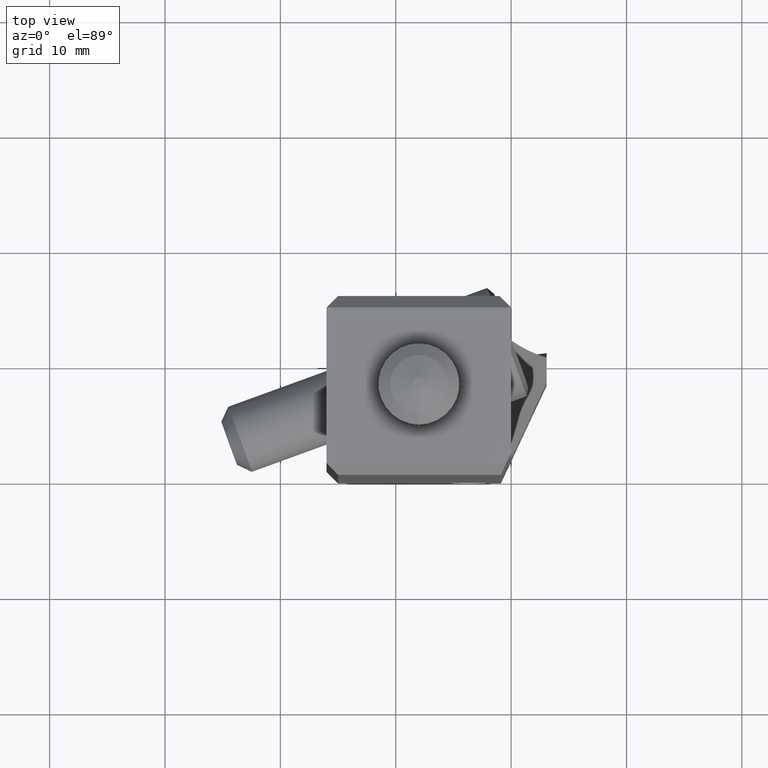
[diagram: clean part render]
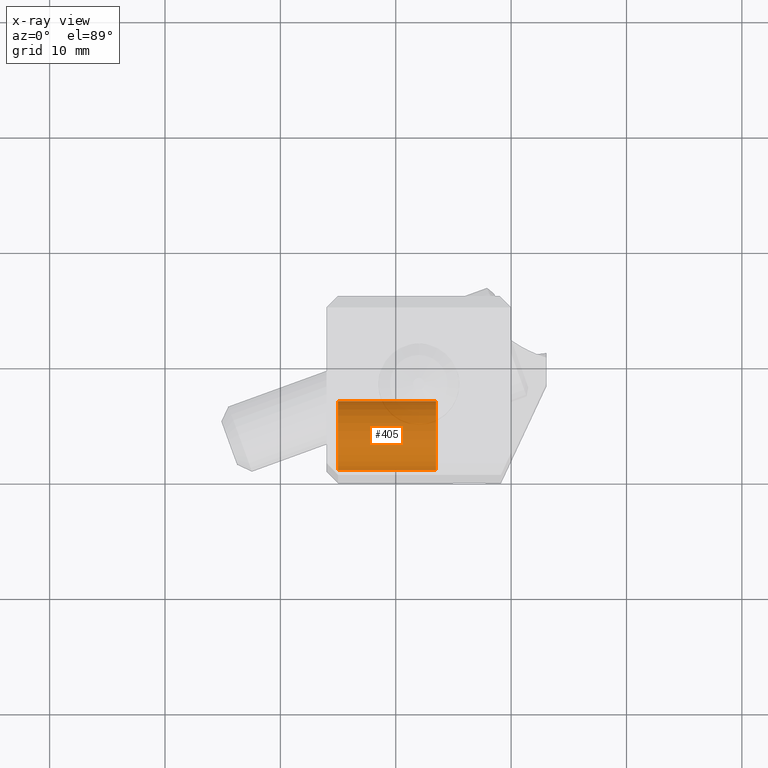
[diagram: x-ray — body ghosted, one internal face saturated and labeled with its STEP entity id]
A machine part, top view, then the same camera in x-ray: the body is ghosted and one INTERNAL B-rep face — a face not visible from any outside direction — is saturated and labeled: STEP entity #405.
In plain terms, the highlighted cylindrical surface (edge-blend (fillet) strip) has radius 3 mm, axis along (1, 0, 0).
Its self-contained STEP definition (entity closure, byte-faithful):
#173=CYLINDRICAL_SURFACE('',#2754,3.);
#245=CIRCLE('',#2747,3.);
#248=CIRCLE('',#2753,3.);
#405=ADVANCED_FACE('',(#589),#173,.T.);
#589=FACE_OUTER_BOUND('',#730,.T.);
#730=EDGE_LOOP('',(#1455,#1456,#1457,#1458));
#917=LINE('',#4151,#1091);
#918=LINE('',#4155,#1092);
#1091=VECTOR('',#3269,1.);
#1092=VECTOR('',#3272,1.);
#1455=ORIENTED_EDGE('',*,*,#2297,.T.);
#1456=ORIENTED_EDGE('',*,*,#2294,.F.);
#1457=ORIENTED_EDGE('',*,*,#2290,.F.);
#1458=ORIENTED_EDGE('',*,*,#2296,.F.);
#2007=VERTEX_POINT('',#4144);
#2008=VERTEX_POINT('',#4145);
#2009=VERTEX_POINT('',#4152);
#2010=VERTEX_POINT('',#4154);
#2290=EDGE_CURVE('',#2007,#2008,#245,.T.);
#2294=EDGE_CURVE('',#2008,#2009,#917,.T.);
#2296=EDGE_CURVE('',#2010,#2007,#918,.T.);
#2297=EDGE_CURVE('',#2010,#2009,#248,.T.);
#2747=AXIS2_PLACEMENT_3D('',#4143,#3259,#3260);
#2753=AXIS2_PLACEMENT_3D('',#4157,#3275,#3276);
#2754=AXIS2_PLACEMENT_3D('',#4158,#3277,#3278);
#3259=DIRECTION('',(-1.,0.,0.));
#3260=DIRECTION('',(0.,-1.,0.));
#3269=DIRECTION('',(1.,0.,0.));
#3272=DIRECTION('',(-1.,0.,0.));
#3275=DIRECTION('',(-1.,0.,0.));
#3276=DIRECTION('',(0.,-1.,0.));
#3277=DIRECTION('',(1.,0.,0.));
#3278=DIRECTION('',(0.,-1.,0.));
#4143=CARTESIAN_POINT('',(-15.,4.,-36.36162800757));
#4144=CARTESIAN_POINT('',(-15.,1.,-36.36162800757));
#4145=CARTESIAN_POINT('',(-15.,7.,-36.36162800757));
#4151=CARTESIAN_POINT('',(-15.,7.,-36.36162800757));
#4152=CARTESIAN_POINT('',(-6.5,7.,-36.36162800757));
#4154=CARTESIAN_POINT('',(-6.5,1.,-36.36162800757));
#4155=CARTESIAN_POINT('',(-6.5,1.,-36.36162800757));
#4157=CARTESIAN_POINT('',(-6.5,4.,-36.36162800757));
#4158=CARTESIAN_POINT('',(-15.17,4.,-36.36162800757));